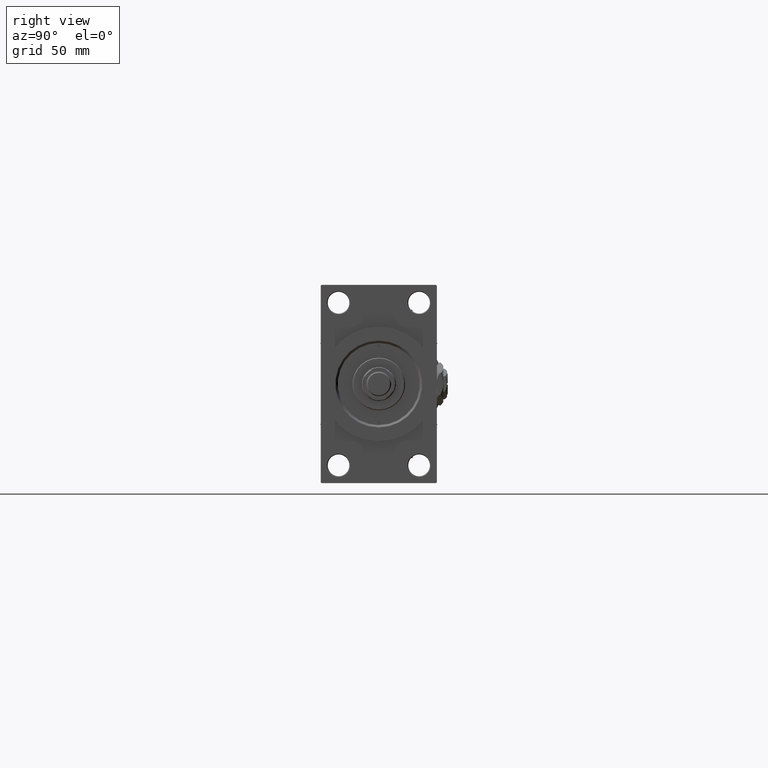
[diagram: clean part render]
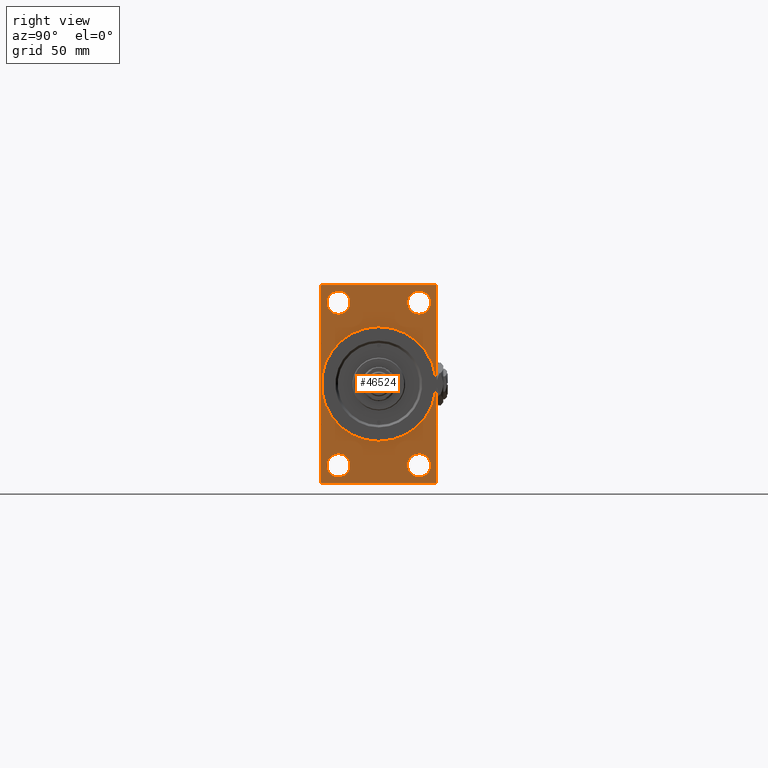
[diagram: same view with one face highlighted and labeled with its STEP entity id]
A machine part, right view. The second image highlights one B-rep face of the part: STEP entity #46524.
In plain terms, the highlighted planar face has unit normal (-1, 0, 0).
Its self-contained STEP definition (entity closure, byte-faithful):
#182 = DIRECTION ( 'NONE',  ( -1.000000000000000000, 0.000000000000000000, -0.000000000000000000 ) ) ;
#461 = DIRECTION ( 'NONE',  ( 0.000000000000000000, -5.421010862427522170E-17, -1.000000000000000000 ) ) ;
#605 = DIRECTION ( 'NONE',  ( 0.000000000000000000, 0.000000000000000000, -1.000000000000000000 ) ) ;
#796 = CARTESIAN_POINT ( 'NONE',  ( 367.9999999999999432, -25.99999999999999645, 60.00000000000005684 ) ) ;
#879 = VERTEX_POINT ( 'NONE', #1739 ) ;
#1206 = DIRECTION ( 'NONE',  ( 0.000000000000000000, -0.7071067811865867636, 0.7071067811865081598 ) ) ;
#1452 = CIRCLE ( 'NONE', #50051, 7.500000000000062172 ) ;
#1462 = EDGE_LOOP ( 'NONE', ( #10791, #23481 ) ) ;
#1739 = CARTESIAN_POINT ( 'NONE',  ( 367.9999999999999432, 36.99999999999994316, 63.99999999999998579 ) ) ;
#1769 = ORIENTED_EDGE ( 'NONE', *, *, #34881, .T. ) ;
#2271 = VERTEX_POINT ( 'NONE', #39283 ) ;
#2412 = DIRECTION ( 'NONE',  ( 0.000000000000000000, 0.000000000000000000, 1.000000000000000000 ) ) ;
#2704 = DIRECTION ( 'NONE',  ( -1.000000000000000000, 0.000000000000000000, -0.000000000000000000 ) ) ;
#3559 = ORIENTED_EDGE ( 'NONE', *, *, #33007, .F. ) ;
#3774 = AXIS2_PLACEMENT_3D ( 'NONE', #35521, #182, #47379 ) ;
#3914 = VERTEX_POINT ( 'NONE', #26334 ) ;
#4095 = DIRECTION ( 'NONE',  ( -1.000000000000000000, 0.000000000000000000, -0.000000000000000000 ) ) ;
#4847 = LINE ( 'NONE', #8718, #38163 ) ;
#6215 = ORIENTED_EDGE ( 'NONE', *, *, #31521, .T. ) ;
#6816 = EDGE_CURVE ( 'NONE', #24699, #32310, #9861, .T. ) ;
#6927 = CIRCLE ( 'NONE', #24244, 7.500000000000062172 ) ;
#6968 = DIRECTION ( 'NONE',  ( 0.000000000000000000, 0.000000000000000000, 1.000000000000000000 ) ) ;
#7948 = CARTESIAN_POINT ( 'NONE',  ( 367.9999999999999432, 26.00000000000000000, -52.49999999999999289 ) ) ;
#8179 = CARTESIAN_POINT ( 'NONE',  ( 367.9999999999999432, 36.99999999999994316, 63.99999999999998579 ) ) ;
#8232 = DIRECTION ( 'NONE',  ( 0.000000000000000000, 0.000000000000000000, 1.000000000000000000 ) ) ;
#8718 = CARTESIAN_POINT ( 'NONE',  ( 367.9999999999999432, 37.50000000000000000, 63.99999999999998579 ) ) ;
#9298 = DIRECTION ( 'NONE',  ( 0.000000000000000000, -1.000000000000000000, -1.850371707708594563E-16 ) ) ;
#9861 = CIRCLE ( 'NONE', #38697, 7.500000000000062172 ) ;
#10753 = EDGE_CURVE ( 'NONE', #32872, #31856, #41059, .T. ) ;
#10791 = ORIENTED_EDGE ( 'NONE', *, *, #16512, .F. ) ;
#10862 = EDGE_LOOP ( 'NONE', ( #37187, #11493, #27605, #25083, #3559, #6215, #21662, #1769 ) ) ;
#11493 = ORIENTED_EDGE ( 'NONE', *, *, #21030, .T. ) ;
#11994 = EDGE_CURVE ( 'NONE', #20561, #40283, #38088, .T. ) ;
#12016 = VERTEX_POINT ( 'NONE', #12599 ) ;
#12044 = EDGE_CURVE ( 'NONE', #24778, #12016, #22439, .T. ) ;
#12599 = CARTESIAN_POINT ( 'NONE',  ( 367.9999999999999432, 26.00000000000000000, 60.00000000000005684 ) ) ;
#12620 = DIRECTION ( 'NONE',  ( -1.000000000000000000, 0.000000000000000000, -0.000000000000000000 ) ) ;
#12691 = VERTEX_POINT ( 'NONE', #15208 ) ;
#12895 = CARTESIAN_POINT ( 'NONE',  ( 367.9999999999999432, 37.49999999999999289, -63.50000000000001421 ) ) ;
#13524 = VECTOR ( 'NONE', #27700, 1000.000000000000000 ) ;
#13546 = FACE_BOUND ( 'NONE', #46759, .T. ) ;
#13639 = VERTEX_POINT ( 'NONE', #37245 ) ;
#13796 = ORIENTED_EDGE ( 'NONE', *, *, #37976, .T. ) ;
#13800 = FACE_BOUND ( 'NONE', #50754, .T. ) ;
#14429 = VERTEX_POINT ( 'NONE', #49893 ) ;
#14669 = VECTOR ( 'NONE', #9298, 1000.000000000000000 ) ;
#15190 = CARTESIAN_POINT ( 'NONE',  ( 367.9999999999999432, 36.99999999999993605, -64.00000000000000000 ) ) ;
#15208 = CARTESIAN_POINT ( 'NONE',  ( 367.9999999999999432, -25.99999999999999645, -60.00000000000005684 ) ) ;
#16228 = CARTESIAN_POINT ( 'NONE',  ( 367.9999999999999432, -25.99999999999999645, 52.50000000000000000 ) ) ;
#16235 = CARTESIAN_POINT ( 'NONE',  ( 367.9999999999999432, -25.99999999999999645, 52.50000000000000000 ) ) ;
#16512 = EDGE_CURVE ( 'NONE', #40283, #20561, #48354, .T. ) ;
#17148 = EDGE_CURVE ( 'NONE', #26535, #27790, #1452, .T. ) ;
#17161 = EDGE_LOOP ( 'NONE', ( #39345, #21070 ) ) ;
#17308 = LINE ( 'NONE', #33043, #14669 ) ;
#17402 = DIRECTION ( 'NONE',  ( -1.000000000000000000, 0.000000000000000000, -0.000000000000000000 ) ) ;
#17532 = CARTESIAN_POINT ( 'NONE',  ( 367.9999999999999432, 37.50000000000000000, 63.99999999999998579 ) ) ;
#18080 = VECTOR ( 'NONE', #32206, 1000.000000000000114 ) ;
#19349 = CIRCLE ( 'NONE', #43928, 7.500000000000062172 ) ;
#19475 = DIRECTION ( 'NONE',  ( 1.000000000000000000, 0.000000000000000000, 0.000000000000000000 ) ) ;
#20003 = ORIENTED_EDGE ( 'NONE', *, *, #6816, .T. ) ;
#20031 = CARTESIAN_POINT ( 'NONE',  ( 367.9999999999999432, -37.49999999999999289, -63.50000000000002842 ) ) ;
#20561 = VERTEX_POINT ( 'NONE', #29225 ) ;
#20601 = CARTESIAN_POINT ( 'NONE',  ( 367.9999999999999432, 0.000000000000000000, 0.000000000000000000 ) ) ;
#21030 = EDGE_CURVE ( 'NONE', #41686, #30025, #28326, .T. ) ;
#21070 = ORIENTED_EDGE ( 'NONE', *, *, #28247, .T. ) ;
#21662 = ORIENTED_EDGE ( 'NONE', *, *, #38290, .T. ) ;
#22439 = CIRCLE ( 'NONE', #32293, 7.500000000000062172 ) ;
#23481 = ORIENTED_EDGE ( 'NONE', *, *, #11994, .F. ) ;
#23838 = LINE ( 'NONE', #39807, #13524 ) ;
#24244 = AXIS2_PLACEMENT_3D ( 'NONE', #29517, #17402, #2412 ) ;
#24699 = VERTEX_POINT ( 'NONE', #45336 ) ;
#24701 = LINE ( 'NONE', #8179, #49642 ) ;
#24778 = VERTEX_POINT ( 'NONE', #48411 ) ;
#25051 = VECTOR ( 'NONE', #25523, 1000.000000000000000 ) ;
#25061 = LINE ( 'NONE', #33061, #48117 ) ;
#25083 = ORIENTED_EDGE ( 'NONE', *, *, #10753, .T. ) ;
#25287 = CIRCLE ( 'NONE', #35967, 7.500000000000062172 ) ;
#25523 = DIRECTION ( 'NONE',  ( 0.000000000000000000, -1.000000000000000000, -1.850371707708594563E-16 ) ) ;
#25736 = ORIENTED_EDGE ( 'NONE', *, *, #12044, .T. ) ;
#26143 = AXIS2_PLACEMENT_3D ( 'NONE', #27466, #19475, #605 ) ;
#26334 = CARTESIAN_POINT ( 'NONE',  ( 367.9999999999999432, -25.99999999999999645, -44.99999999999992895 ) ) ;
#26535 = VERTEX_POINT ( 'NONE', #28780 ) ;
#26749 = CARTESIAN_POINT ( 'NONE',  ( 367.9999999999999432, 26.00000000000000000, -44.99999999999992895 ) ) ;
#26839 = CARTESIAN_POINT ( 'NONE',  ( 367.9999999999999432, -25.99999999999999645, -52.49999999999999289 ) ) ;
#27466 = CARTESIAN_POINT ( 'NONE',  ( 367.9999999999999432, 0.000000000000000000, 0.000000000000000000 ) ) ;
#27605 = ORIENTED_EDGE ( 'NONE', *, *, #49117, .F. ) ;
#27700 = DIRECTION ( 'NONE',  ( -0.000000000000000000, -0.7071067811865524577, -0.7071067811865426878 ) ) ;
#27790 = VERTEX_POINT ( 'NONE', #796 ) ;
#28159 = AXIS2_PLACEMENT_3D ( 'NONE', #20601, #44075, #28592 ) ;
#28247 = EDGE_CURVE ( 'NONE', #27790, #26535, #29754, .T. ) ;
#28326 = LINE ( 'NONE', #37340, #18080 ) ;
#28592 = DIRECTION ( 'NONE',  ( 0.000000000000000000, 0.000000000000000000, -1.000000000000000000 ) ) ;
#28780 = CARTESIAN_POINT ( 'NONE',  ( 367.9999999999999432, -25.99999999999999645, 44.99999999999993605 ) ) ;
#28936 = AXIS2_PLACEMENT_3D ( 'NONE', #16228, #31959, #8232 ) ;
#28948 = ORIENTED_EDGE ( 'NONE', *, *, #38410, .T. ) ;
#29225 = CARTESIAN_POINT ( 'NONE',  ( 367.9999999999999432, 4.531193156845206793E-15, -37.00000000000000000 ) ) ;
#29295 = FACE_OUTER_BOUND ( 'NONE', #10862, .T. ) ;
#29517 = CARTESIAN_POINT ( 'NONE',  ( 367.9999999999999432, -25.99999999999999645, -52.49999999999999289 ) ) ;
#29754 = CIRCLE ( 'NONE', #28936, 7.500000000000062172 ) ;
#29814 = FACE_BOUND ( 'NONE', #34937, .T. ) ;
#30025 = VERTEX_POINT ( 'NONE', #34820 ) ;
#31315 = DIRECTION ( 'NONE',  ( -0.000000000000000000, 0.000000000000000000, 1.000000000000000000 ) ) ;
#31521 = EDGE_CURVE ( 'NONE', #14429, #879, #24701, .T. ) ;
#31856 = VERTEX_POINT ( 'NONE', #12895 ) ;
#31959 = DIRECTION ( 'NONE',  ( -1.000000000000000000, 0.000000000000000000, -0.000000000000000000 ) ) ;
#32206 = DIRECTION ( 'NONE',  ( 0.000000000000000000, 0.7071067811865965336, -0.7071067811864985009 ) ) ;
#32230 = CARTESIAN_POINT ( 'NONE',  ( 367.9999999999999432, 0.000000000000000000, 37.00000000000000000 ) ) ;
#32293 = AXIS2_PLACEMENT_3D ( 'NONE', #44324, #32468, #48436 ) ;
#32310 = VERTEX_POINT ( 'NONE', #26749 ) ;
#32468 = DIRECTION ( 'NONE',  ( -1.000000000000000000, 0.000000000000000000, -0.000000000000000000 ) ) ;
#32566 = CARTESIAN_POINT ( 'NONE',  ( 367.9999999999999432, 37.49999999999999289, -63.50000000000001421 ) ) ;
#32872 = VERTEX_POINT ( 'NONE', #15190 ) ;
#33007 = EDGE_CURVE ( 'NONE', #14429, #31856, #4847, .T. ) ;
#33043 = CARTESIAN_POINT ( 'NONE',  ( 367.9999999999999432, 37.49999999999999289, -64.00000000000000000 ) ) ;
#33061 = CARTESIAN_POINT ( 'NONE',  ( 367.9999999999999432, -37.49999999999999289, 63.99999999999997158 ) ) ;
#34820 = CARTESIAN_POINT ( 'NONE',  ( 367.9999999999999432, -36.99999999999993605, -64.00000000000001421 ) ) ;
#34881 = EDGE_CURVE ( 'NONE', #2271, #13639, #23838, .T. ) ;
#34900 = CARTESIAN_POINT ( 'NONE',  ( 367.9999999999999432, 26.00000000000000000, -52.49999999999999289 ) ) ;
#34937 = EDGE_LOOP ( 'NONE', ( #13796, #41234 ) ) ;
#35290 = EDGE_CURVE ( 'NONE', #13639, #41686, #25061, .T. ) ;
#35396 = EDGE_CURVE ( 'NONE', #3914, #12691, #19349, .T. ) ;
#35521 = CARTESIAN_POINT ( 'NONE',  ( 367.9999999999999432, 26.00000000000000000, 52.49999999999999289 ) ) ;
#35967 = AXIS2_PLACEMENT_3D ( 'NONE', #7948, #4095, #37982 ) ;
#36398 = DIRECTION ( 'NONE',  ( 0.000000000000000000, 0.000000000000000000, -1.000000000000000000 ) ) ;
#37187 = ORIENTED_EDGE ( 'NONE', *, *, #35290, .T. ) ;
#37245 = CARTESIAN_POINT ( 'NONE',  ( 367.9999999999999432, -37.49999999999999289, 63.49999999999991473 ) ) ;
#37340 = CARTESIAN_POINT ( 'NONE',  ( 367.9999999999999432, -36.99999999999993605, -64.00000000000001421 ) ) ;
#37683 = DIRECTION ( 'NONE',  ( -1.000000000000000000, 0.000000000000000000, -0.000000000000000000 ) ) ;
#37976 = EDGE_CURVE ( 'NONE', #12691, #3914, #6927, .T. ) ;
#37982 = DIRECTION ( 'NONE',  ( 0.000000000000000000, 0.000000000000000000, 1.000000000000000000 ) ) ;
#38088 = CIRCLE ( 'NONE', #28159, 37.00000000000000000 ) ;
#38163 = VECTOR ( 'NONE', #461, 1000.000000000000000 ) ;
#38290 = EDGE_CURVE ( 'NONE', #879, #2271, #41762, .T. ) ;
#38410 = EDGE_CURVE ( 'NONE', #12016, #24778, #49909, .T. ) ;
#38697 = AXIS2_PLACEMENT_3D ( 'NONE', #34900, #50629, #44110 ) ;
#39283 = CARTESIAN_POINT ( 'NONE',  ( 367.9999999999999432, -36.99999999999992895, 63.99999999999997158 ) ) ;
#39345 = ORIENTED_EDGE ( 'NONE', *, *, #17148, .T. ) ;
#39807 = CARTESIAN_POINT ( 'NONE',  ( 367.9999999999999432, -37.49999999999999289, 63.49999999999991473 ) ) ;
#40283 = VERTEX_POINT ( 'NONE', #32230 ) ;
#40497 = VECTOR ( 'NONE', #48282, 1000.000000000000114 ) ;
#40739 = DIRECTION ( 'NONE',  ( 0.000000000000000000, 0.000000000000000000, 1.000000000000000000 ) ) ;
#41059 = LINE ( 'NONE', #32566, #40497 ) ;
#41147 = PLANE ( 'NONE',  #46691 ) ;
#41234 = ORIENTED_EDGE ( 'NONE', *, *, #35396, .T. ) ;
#41686 = VERTEX_POINT ( 'NONE', #20031 ) ;
#41762 = LINE ( 'NONE', #17532, #25051 ) ;
#43908 = ORIENTED_EDGE ( 'NONE', *, *, #46830, .T. ) ;
#43928 = AXIS2_PLACEMENT_3D ( 'NONE', #26839, #37683, #6968 ) ;
#44075 = DIRECTION ( 'NONE',  ( 1.000000000000000000, 0.000000000000000000, 0.000000000000000000 ) ) ;
#44110 = DIRECTION ( 'NONE',  ( 0.000000000000000000, 0.000000000000000000, 1.000000000000000000 ) ) ;
#44324 = CARTESIAN_POINT ( 'NONE',  ( 367.9999999999999432, 26.00000000000000000, 52.49999999999999289 ) ) ;
#45336 = CARTESIAN_POINT ( 'NONE',  ( 367.9999999999999432, 26.00000000000000000, -60.00000000000005684 ) ) ;
#45542 = FACE_BOUND ( 'NONE', #1462, .T. ) ;
#46285 = CARTESIAN_POINT ( 'NONE',  ( 367.9999999999999432, 0.000000000000000000, 0.000000000000000000 ) ) ;
#46524 = ADVANCED_FACE ( 'NONE', ( #49389, #29814, #13546, #13800, #45542, #29295 ), #41147, .F. ) ;
#46691 = AXIS2_PLACEMENT_3D ( 'NONE', #46285, #2704, #31315 ) ;
#46759 = EDGE_LOOP ( 'NONE', ( #20003, #43908 ) ) ;
#46830 = EDGE_CURVE ( 'NONE', #32310, #24699, #25287, .T. ) ;
#47379 = DIRECTION ( 'NONE',  ( 0.000000000000000000, 0.000000000000000000, 1.000000000000000000 ) ) ;
#48117 = VECTOR ( 'NONE', #36398, 1000.000000000000000 ) ;
#48282 = DIRECTION ( 'NONE',  ( -0.000000000000000000, 0.7071067811865965336, 0.7071067811864985009 ) ) ;
#48354 = CIRCLE ( 'NONE', #26143, 37.00000000000000000 ) ;
#48411 = CARTESIAN_POINT ( 'NONE',  ( 367.9999999999999432, 26.00000000000000000, 44.99999999999992895 ) ) ;
#48436 = DIRECTION ( 'NONE',  ( 0.000000000000000000, 0.000000000000000000, 1.000000000000000000 ) ) ;
#49117 = EDGE_CURVE ( 'NONE', #32872, #30025, #17308, .T. ) ;
#49389 = FACE_BOUND ( 'NONE', #17161, .T. ) ;
#49642 = VECTOR ( 'NONE', #1206, 1000.000000000000000 ) ;
#49893 = CARTESIAN_POINT ( 'NONE',  ( 367.9999999999999432, 37.50000000000000000, 63.49999999999998579 ) ) ;
#49909 = CIRCLE ( 'NONE', #3774, 7.500000000000062172 ) ;
#50051 = AXIS2_PLACEMENT_3D ( 'NONE', #16235, #12620, #40739 ) ;
#50629 = DIRECTION ( 'NONE',  ( -1.000000000000000000, 0.000000000000000000, -0.000000000000000000 ) ) ;
#50754 = EDGE_LOOP ( 'NONE', ( #25736, #28948 ) ) ;